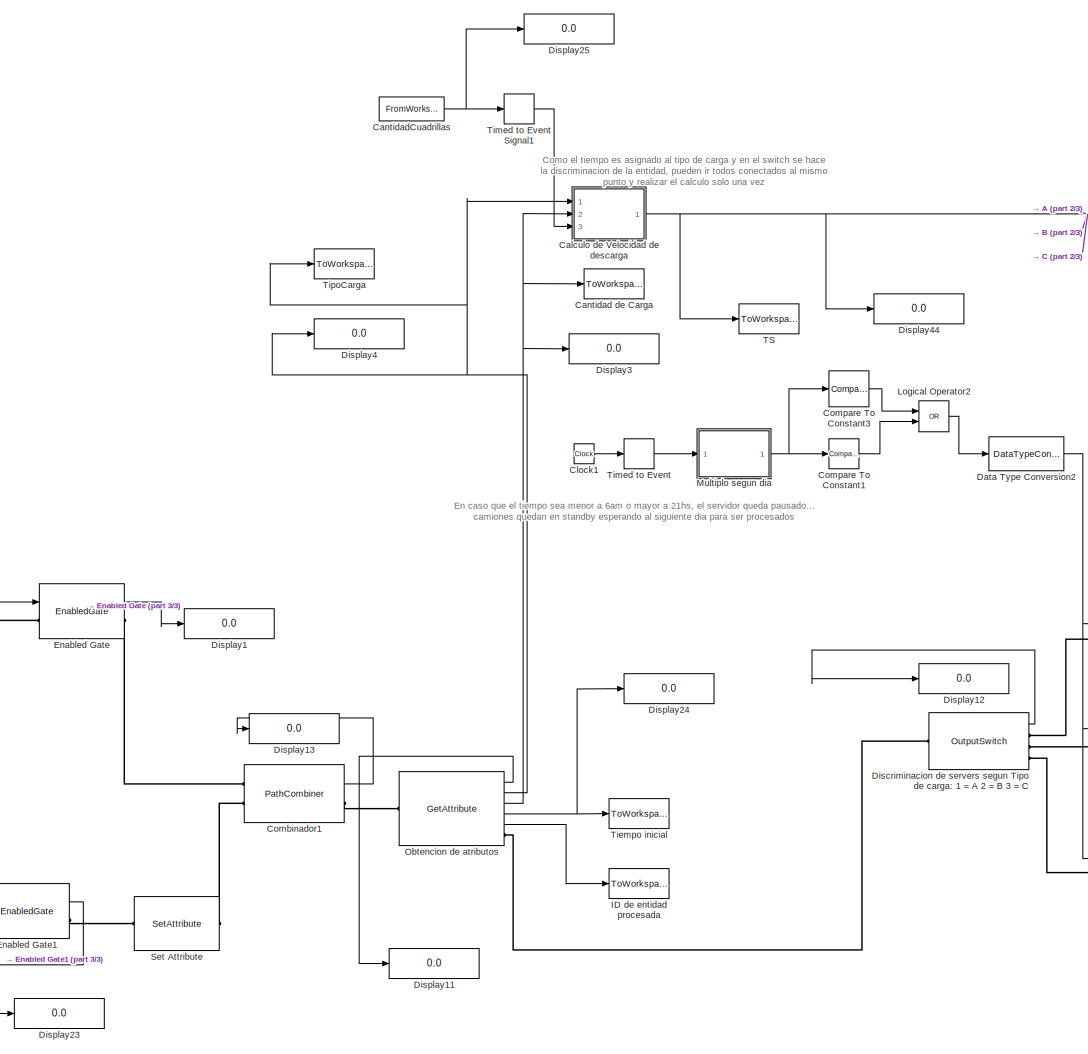
[diagram: root canvas - part 1/3, center side, full height]
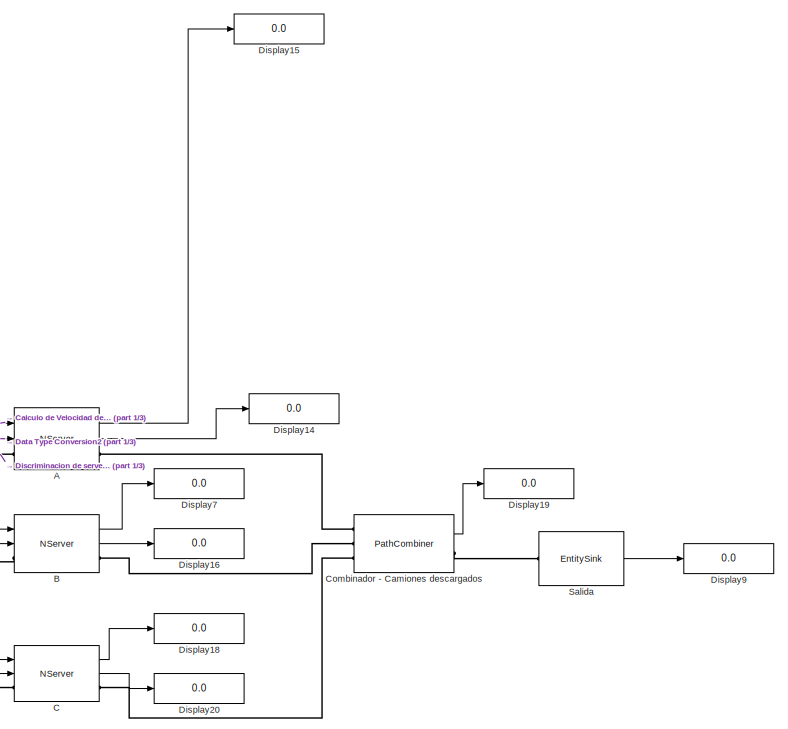
[diagram: root canvas - part 2/3, middle right region]
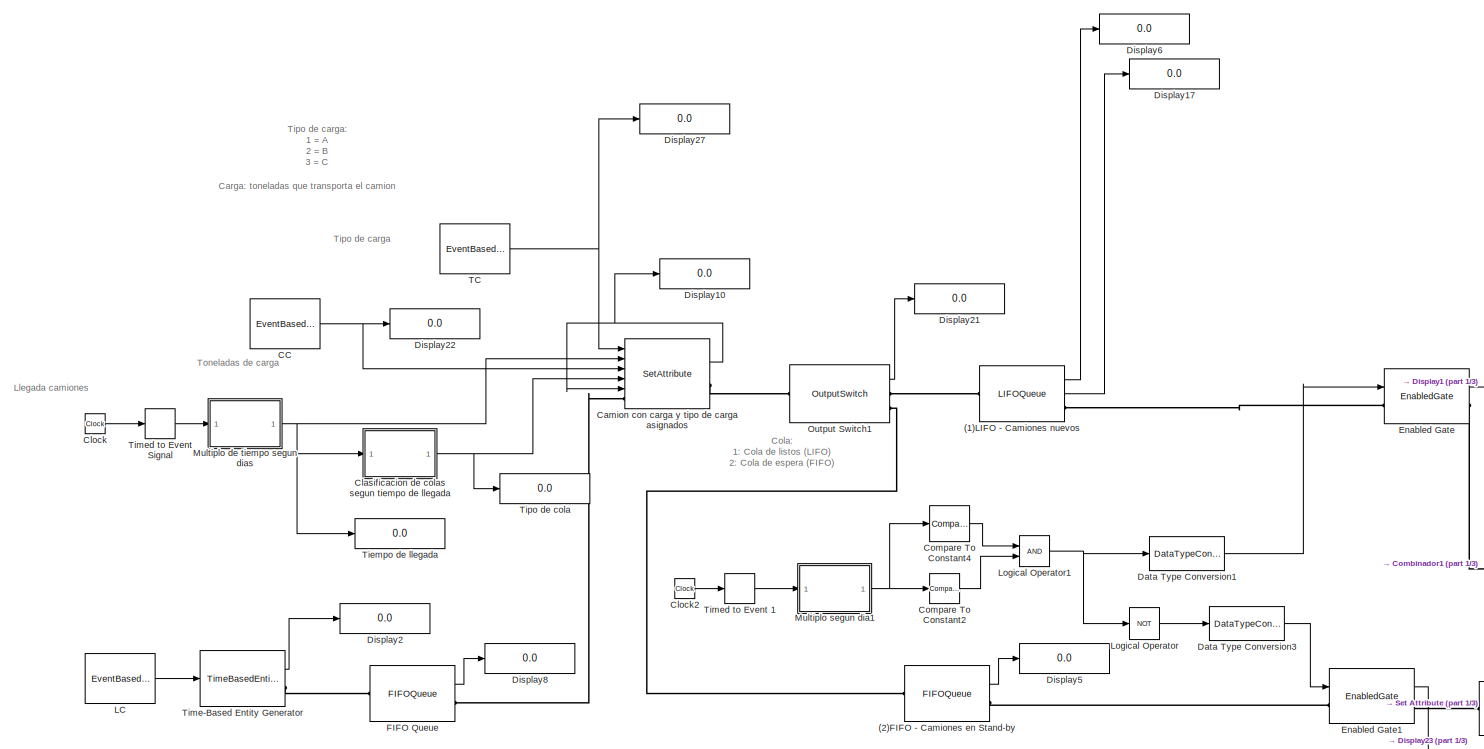
[diagram: root canvas - part 3/3, middle left region]
MODEL slx_c39e3b0edc76
KIND model
BLOCK [LIFOQueue] (1)LIFO - Camiones nuevos
  Capacity = inf
  OutputPortMap = o0,o1
  Ports = [0, 2, 0, 0, 0, 1, 1]
  StatNumberDeparted = on
  StatNumberInBlock = on
BLOCK [FIFOQueue] (2)FIFO - Camiones en Stand-by
  Capacity = inf
  OutputPortMap = o0
  Ports = [0, 1, 0, 0, 0, 1, 1]
  StatNumberDeparted = on
BLOCK [NServer] A
  AllowServiceControl = on
  InputPortMap = u0,u1
  NumberOfServers = 1
  OutputPortMap = o0,o1
  Ports = [2, 2, 0, 0, 0, 1, 1]
  ServiceTimeFrom = Signal port t
  StatNumberDeparted = on
  StatNumberInBlock = on
BLOCK [NServer] B
  AllowServiceControl = on
  InputPortMap = u0,u1
  NumberOfServers = 1
  OutputPortMap = o0,o1
  Ports = [2, 2, 0, 0, 0, 1, 1]
  ServiceTimeFrom = Signal port t
  StatNumberDeparted = on
  StatNumberInBlock = on
BLOCK [NServer] C
  AllowServiceControl = on
  InputPortMap = u0,u1
  NumberOfServers = 1
  OutputPortMap = o0,o1
  Ports = [2, 2, 0, 0, 0, 1, 1]
  ServiceTimeFrom = Signal port t
  StatNumberDeparted = on
  StatNumberInBlock = on
BLOCK [EventBasedRandomNumber] CC
  Distribution = Gaussian (normal)
  OutputPortMap = o0
  Ports = [0, 1]
  Seed = 462317
  meanNorm = 20
  stdNorm = 3.5
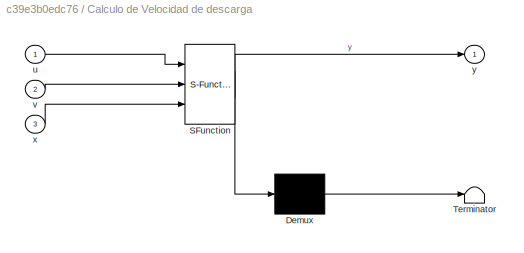
BLOCK [SubSystem] Calculo de Velocidad de descarga
  ErrorFcn = Stateflow.Translate.translate
  PermitHierarchicalResolution = ExplicitOnly
  Ports = [3, 1]
  RequestExecContextInheritance = off
  SFBlockType = MATLAB Function
  TreatAsAtomicUnit = on
BLOCK [Demux] Calculo de Velocidad de descarga/ Demux 
  Outputs = 1
  Ports = [1, 1]
BLOCK [S-Function] Calculo de Velocidad de descarga/ SFunction 
  EnableBusSupport = on
  FunctionName = sf_sfun
  PortCounts = [3 2]
  Ports = [3, 2]
  Tag = Stateflow S-Function v40 1
BLOCK [Terminator] Calculo de Velocidad de descarga/ Terminator 
BLOCK [Inport] Calculo de Velocidad de descarga/u
  IconDisplay = Port number
BLOCK [Inport] Calculo de Velocidad de descarga/v
  IconDisplay = Port number
  Port = 2
BLOCK [Inport] Calculo de Velocidad de descarga/x
  IconDisplay = Port number
  Port = 3
BLOCK [Outport] Calculo de Velocidad de descarga/y
  IconDisplay = Port number
BLOCK [SetAttribute] Camion con carga y tipo de carga asignados
  AttributeFrom = Signal port|Signal port|Dialog|Signal port|Dialog|Signal port|Signal port
  AttributeName = TipoDeCarga|Tiempo|PrecioBase|Carga|Desicion|Cola|ID
  AttributeTreatAsVector = 1|1|1|1|1|1|1
  AttributeValue = 1|clock|94|1|1|1|1
  EvaluatedAttributeValue = { [];[];94;[];1;[];[]}
  InputPortMap = u0,u1,u3,u5,u6
  OutputPortMap = o0
  Ports = [5, 1, 0, 0, 0, 1, 1]
  StatNumberDeparted = on
BLOCK [ToWorkspace] Cantidad de Carga
  FixptAsFi = on
  MaxDataPoints = inf
  Ports = [1]
  SampleTime = -1
  Save2DSignal = 3-D array (concatenate along third dimension)
  SaveFormat = Timeseries
  VariableName = Carga
BLOCK [FromWorkspace] CantidadCuadrillas
  SampleTime = 0
  VariableName = CantCuadrillas
  ZeroCross = on
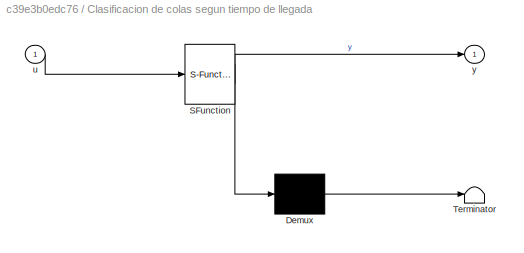
BLOCK [SubSystem] Clasificacion de colas segun tiempo de llegada
  ErrorFcn = Stateflow.Translate.translate
  PermitHierarchicalResolution = ExplicitOnly
  Ports = [1, 1]
  RequestExecContextInheritance = off
  SFBlockType = MATLAB Function
  TreatAsAtomicUnit = on
BLOCK [Demux] Clasificacion de colas segun tiempo de llegada/ Demux 
  Outputs = 1
  Ports = [1, 1]
BLOCK [S-Function] Clasificacion de colas segun tiempo de llegada/ SFunction 
  EnableBusSupport = on
  FunctionName = sf_sfun
  PortCounts = [1 2]
  Ports = [1, 2]
  Tag = Stateflow S-Function v40 4
BLOCK [Terminator] Clasificacion de colas segun tiempo de llegada/ Terminator 
BLOCK [Inport] Clasificacion de colas segun tiempo de llegada/u
  IconDisplay = Port number
BLOCK [Outport] Clasificacion de colas segun tiempo de llegada/y
  IconDisplay = Port number
BLOCK [Clock] Clock
  DisplayTime = on
BLOCK [Clock] Clock1
BLOCK [Clock] Clock2
BLOCK [PathCombiner] Combinador - Camiones descargados
  OutputPortMap = o0
  Ports = [0, 1, 0, 0, 0, 3, 1]
  StatNumberDeparted = on
BLOCK [PathCombiner] Combinador1
  NumberInputPorts = 2
  OutputPortMap = o0
  Ports = [0, 1, 0, 0, 0, 2, 1]
  StatNumberDeparted = on
BLOCK [Reference] Compare To Constant1  REF=simulink/Logic and Bit
Operations/Compare
To Constant
  OutDataTypeStr = uint8
  Ports = [1, 1]
  SourceBlock = simulink/Logic and Bit\nOperations/Compare\nTo Constant
  SourceType = Compare To Constant
  ZeroCross = on
  const = 360
  relop = <
BLOCK [Reference] Compare To Constant2  REF=simulink/Logic and Bit
Operations/Compare
To Constant
  OutDataTypeStr = uint8
  Ports = [1, 1]
  SourceBlock = simulink/Logic and Bit\nOperations/Compare\nTo Constant
  SourceType = Compare To Constant
  ZeroCross = on
  const = 1020
  relop = <
BLOCK [Reference] Compare To Constant3  REF=simulink/Logic and Bit
Operations/Compare
To Constant
  OutDataTypeStr = uint8
  Ports = [1, 1]
  SourceBlock = simulink/Logic and Bit\nOperations/Compare\nTo Constant
  SourceType = Compare To Constant
  ZeroCross = on
  const = 1260
  relop = >
BLOCK [Reference] Compare To Constant4  REF=simulink/Logic and Bit
Operations/Compare
To Constant
  OutDataTypeStr = uint8
  Ports = [1, 1]
  SourceBlock = simulink/Logic and Bit\nOperations/Compare\nTo Constant
  SourceType = Compare To Constant
  ZeroCross = on
  const = 360
  relop = >
BLOCK [DataTypeConversion] Data Type Conversion1
  OutMax = [1]
  OutMin = [-1]
  RndMeth = Floor
  SaturateOnIntegerOverflow = off
BLOCK [DataTypeConversion] Data Type Conversion2
  OutMax = [1]
  OutMin = [-1]
  RndMeth = Floor
  SaturateOnIntegerOverflow = off
BLOCK [DataTypeConversion] Data Type Conversion3
  OutMax = [1]
  OutMin = [-1]
  RndMeth = Floor
  SaturateOnIntegerOverflow = off
BLOCK [OutputSwitch] Discriminacion de servers segun Tipo de carga: 1 = A 2 = B 3 = C 
  OutputPortMap = o0
  Ports = [0, 1, 0, 0, 0, 1, 3]
  StatNumberDeparted = on
BLOCK [Display] Display1
  Decimation = 1
  Ports = [1]
BLOCK [Display] Display10
  Decimation = 1
  Ports = [1]
BLOCK [Display] Display11
  Decimation = 1
  Ports = [1]
BLOCK [Display] Display12
  Decimation = 1
  Ports = [1]
BLOCK [Display] Display13
  Decimation = 1
  Ports = [1]
BLOCK [Display] Display14
  Decimation = 1
  Ports = [1]
BLOCK [Display] Display15
  Decimation = 1
  Ports = [1]
BLOCK [Display] Display16
  Decimation = 1
  Ports = [1]
BLOCK [Display] Display17
  Decimation = 1
  Ports = [1]
BLOCK [Display] Display18
  Decimation = 1
  Ports = [1]
BLOCK [Display] Display19
  Decimation = 2
  Ports = [1]
BLOCK [Display] Display2
  Decimation = 1
  Ports = [1]
BLOCK [Display] Display20
  Decimation = 1
  Ports = [1]
BLOCK [Display] Display21
  Decimation = 1
  Ports = [1]
BLOCK [Display] Display22
  Decimation = 1
  Ports = [1]
BLOCK [Display] Display23
  Decimation = 1
  Ports = [1]
BLOCK [Display] Display24
  Decimation = 1
  Ports = [1]
BLOCK [Display] Display25
  Decimation = 1
  Ports = [1]
BLOCK [Display] Display27
  Decimation = 1
  Ports = [1]
BLOCK [Display] Display3
  Decimation = 1
  Ports = [1]
BLOCK [Display] Display4
  Decimation = 1
  Ports = [1]
BLOCK [Display] Display44
  Decimation = 1
  Ports = [1]
BLOCK [Display] Display5
  Decimation = 1
  Ports = [1]
BLOCK [Display] Display6
  Decimation = 1
  Ports = [1]
BLOCK [Display] Display7
  Decimation = 1
  Ports = [1]
BLOCK [Display] Display8
  Decimation = 1
  Ports = [1]
BLOCK [Display] Display9
  Decimation = 1
  Ports = [1]
BLOCK [EnabledGate] Enabled Gate
  InputPortMap = u0
  OutputPortMap = o0
  Ports = [1, 1, 0, 0, 0, 1, 1]
  StatNumberDeparted = on
BLOCK [EnabledGate] Enabled Gate1
  InputPortMap = u0
  OutputPortMap = o0
  Ports = [1, 1, 0, 0, 0, 1, 1]
  StatNumberDeparted = on
BLOCK [FIFOQueue] FIFO Queue
  Capacity = inf
  OutputPortMap = o1
  Ports = [0, 1, 0, 0, 0, 1, 1]
  StatNumberInBlock = on
BLOCK [ToWorkspace] ID de entidad procesada
  FixptAsFi = on
  MaxDataPoints = inf
  Ports = [1]
  SampleTime = -1
  Save2DSignal = 3-D array (concatenate along third dimension)
  SaveFormat = Timeseries
  VariableName = ID
BLOCK [EventBasedRandomNumber] LC
  OutputPortMap = o0
  Ports = [0, 1]
  Seed = 150794
  meanExp = 2.466
  meanNorm = 20
  stdNorm = 3.5
BLOCK [Logic] Logical Operator
  AllPortsSameDT = off
  Operator = NOT
  OutDataTypeStr = boolean
  Ports = [1, 1]
BLOCK [Logic] Logical Operator1
  AllPortsSameDT = off
  OutDataTypeStr = boolean
  Ports = [2, 1]
BLOCK [Logic] Logical Operator2
  AllPortsSameDT = off
  Operator = OR
  OutDataTypeStr = boolean
  Ports = [2, 1]
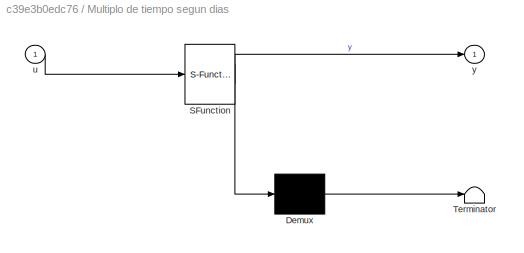
BLOCK [SubSystem] Multiplo de tiempo segun dias
  ErrorFcn = Stateflow.Translate.translate
  PermitHierarchicalResolution = ExplicitOnly
  Ports = [1, 1]
  RequestExecContextInheritance = off
  SFBlockType = MATLAB Function
  TreatAsAtomicUnit = on
BLOCK [Demux] Multiplo de tiempo segun dias/ Demux 
  Outputs = 1
  Ports = [1, 1]
BLOCK [S-Function] Multiplo de tiempo segun dias/ SFunction 
  EnableBusSupport = on
  FunctionName = sf_sfun
  PortCounts = [1 2]
  Ports = [1, 2]
  Tag = Stateflow S-Function v40 2
BLOCK [Terminator] Multiplo de tiempo segun dias/ Terminator 
BLOCK [Inport] Multiplo de tiempo segun dias/u
  IconDisplay = Port number
BLOCK [Outport] Multiplo de tiempo segun dias/y
  IconDisplay = Port number
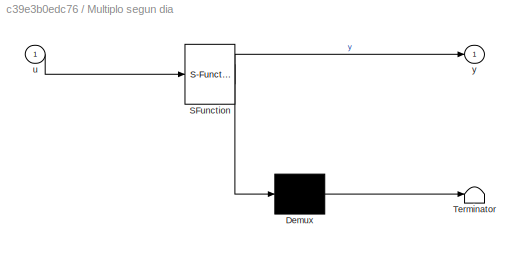
BLOCK [SubSystem] Multiplo segun dia
  ErrorFcn = Stateflow.Translate.translate
  PermitHierarchicalResolution = ExplicitOnly
  Ports = [1, 1]
  RequestExecContextInheritance = off
  SFBlockType = MATLAB Function
  TreatAsAtomicUnit = on
BLOCK [Demux] Multiplo segun dia/ Demux 
  Outputs = 1
  Ports = [1, 1]
BLOCK [S-Function] Multiplo segun dia/ SFunction 
  EnableBusSupport = on
  FunctionName = sf_sfun
  PortCounts = [1 2]
  Ports = [1, 2]
  Tag = Stateflow S-Function v40 5
BLOCK [Terminator] Multiplo segun dia/ Terminator 
BLOCK [Inport] Multiplo segun dia/u
  IconDisplay = Port number
BLOCK [Outport] Multiplo segun dia/y
  IconDisplay = Port number
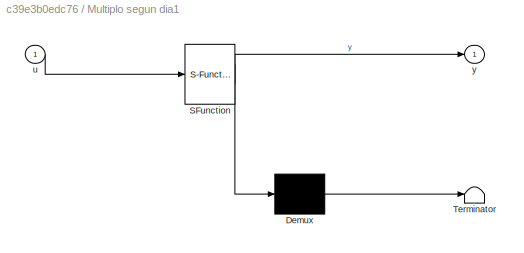
BLOCK [SubSystem] Multiplo segun dia1
  ErrorFcn = Stateflow.Translate.translate
  PermitHierarchicalResolution = ExplicitOnly
  Ports = [1, 1]
  RequestExecContextInheritance = off
  SFBlockType = MATLAB Function
  TreatAsAtomicUnit = on
BLOCK [Demux] Multiplo segun dia1/ Demux 
  Outputs = 1
  Ports = [1, 1]
BLOCK [S-Function] Multiplo segun dia1/ SFunction 
  EnableBusSupport = on
  FunctionName = sf_sfun
  PortCounts = [1 2]
  Ports = [1, 2]
  Tag = Stateflow S-Function v40 3
BLOCK [Terminator] Multiplo segun dia1/ Terminator 
BLOCK [Inport] Multiplo segun dia1/u
  IconDisplay = Port number
BLOCK [Outport] Multiplo segun dia1/y
  IconDisplay = Port number
BLOCK [GetAttribute] Obtencion de atributos
  AttributeDefaultValue = 1|1|1|1
  AttributeMissing = Error|Error|Error|Error
  AttributeName = TipoDeCarga|Carga|Tiempo|ID
  AttributeSendTiming = After entity departure|After entity departure|After entity departure|After entity departure
  AttributeTreatAsVector = 1|1|1|1
  EvaluatedDefaultAttributeValue = { [];[];[];[]}
  OutputPortMap = o0,o1,o2,o3,o4
  Ports = [0, 5, 0, 0, 0, 1, 1]
  StatNumberDeparted = on
BLOCK [OutputSwitch] Output Switch1
  AttributeName = Cola
  NumberOutputPorts = 2
  OutputPortMap = o0
  Ports = [0, 1, 0, 0, 0, 1, 2]
  StatNumberDeparted = on
  SwitchingCriterion = From attribute
BLOCK [EntitySink] Salida 
  OutputPortMap = o0
  Ports = [0, 1, 0, 0, 0, 1]
  StatNumberArrived = on
BLOCK [SetAttribute] Set Attribute
  AttributeName = Tiempo
  AttributeValue = 360
  EvaluatedAttributeValue = { 360}
  Ports = [0, 0, 0, 0, 0, 1, 1]
BLOCK [EventBasedRandomNumber] TC
  Distribution = Arbitrary discrete
  OutputPortMap = o0
  Ports = [0, 1]
  Seed = 425890
  probVecDisc = [0.4 0.35 0.25]
  valueVecDisc = [1 2 3]
BLOCK [ToWorkspace] TS
  FixptAsFi = on
  MaxDataPoints = inf
  Ports = [1]
  SampleTime = -1
  Save2DSignal = 3-D array (concatenate along third dimension)
  SaveFormat = Timeseries
  VariableName = TS
BLOCK [Display] Tiempo de llegada
  Decimation = 1
  Ports = [1]
BLOCK [ToWorkspace] Tiempo inicial
  FixptAsFi = on
  MaxDataPoints = inf
  Ports = [1]
  SampleTime = -1
  Save2DSignal = 3-D array (concatenate along third dimension)
  SaveFormat = Timeseries
  VariableName = TI
BLOCK [TimeBasedEntityGenerator] Time-Based Entity Generator
  Distribution = Exponential
  GenerateEntitiesUpon = Intergeneration time from port t
  InitialSeed = 567498
  InputPortMap = u0
  Mean = 2.46
  OutputPortMap = o0
  Ports = [1, 1, 0, 0, 0, 0, 1]
  StatNumberDeparted = on
BLOCK [TimedToEventSignal] Timed to Event 
  InputPortMap = u0
  OutputPortMap = o0
  Ports = [1, 1]
BLOCK [TimedToEventSignal] Timed to Event 1
  InputPortMap = u0
  OutputPortMap = o0
  Ports = [1, 1]
BLOCK [TimedToEventSignal] Timed to Event Signal
  InputPortMap = u0
  OutputPortMap = o0
  Ports = [1, 1]
BLOCK [TimedToEventSignal] Timed to Event Signal1
  InputPortMap = u0
  OutputPortMap = o0
  Ports = [1, 1]
BLOCK [Display] Tipo de cola
  Decimation = 1
  Ports = [1]
BLOCK [ToWorkspace] TipoCarga
  FixptAsFi = on
  MaxDataPoints = inf
  Ports = [1]
  SampleTime = -1
  Save2DSignal = 3-D array (concatenate along third dimension)
  SaveFormat = Timeseries
  VariableName = TipoCarga
ANNOTATION (root): Carga: toneladas que transporta el camion
ANNOTATION (root): Cola: 1: Cola de listos (LIFO) 2: Cola de espera (FIFO)
ANNOTATION (root): Como el tiempo es asignado al tipo de carga y en el switch se hace la discriminacion de la entidad, pueden ir todos conectados al mismo punto y realizar el calculo solo una vez
ANNOTATION (root): En caso que el tiempo sea menor a 6am o mayor a 21hs, el servidor queda pausado y los camiones quedan en standby esperando al siguiente dia para ser procesados
ANNOTATION (root): Llegada camiones
ANNOTATION (root): Tipo de carga
ANNOTATION (root): Tipo de carga: 1 = A 2 = B 3 = C
ANNOTATION (root): Toneladas de carga
LINE (1)LIFO - Camiones nuevos:1 -> Display6:1
LINE (1)LIFO - Camiones nuevos:2 -> Display17:1
LINE (2)FIFO - Camiones en Stand-by:1 -> Display5:1
LINE A:1 -> Display15:1
LINE A:2 -> Display14:1
LINE B:1 -> Display7:1
LINE B:2 -> Display16:1
LINE C:1 -> Display18:1
LINE C:2 -> Display20:1
NET CC:1 -> Camion con carga y tipo de carga asignados:3, Display22:1
NET Calculo de Velocidad de descarga:1 -> A:1, B:1, C:1, Display44:1, TS:1
NET Camion con carga y tipo de carga asignados:1 -> Camion con carga y tipo de carga asignados:5, Display10:1
NET CantidadCuadrillas:1 -> Display25:1, Timed to Event Signal1:1
NET Clasificacion de colas segun tiempo de llegada:1 -> Camion con carga y tipo de carga asignados:4, Tipo de cola:1
LINE Clock1:1 -> Timed to Event :1
LINE Clock2:1 -> Timed to Event 1:1
LINE Clock:1 -> Timed to Event Signal:1
LINE Combinador - Camiones descargados:1 -> Display19:1
LINE Combinador1:1 -> Display13:1
LINE Compare To Constant1:1 -> Logical Operator2:2
LINE Compare To Constant2:1 -> Logical Operator1:2
LINE Compare To Constant3:1 -> Logical Operator2:1
LINE Compare To Constant4:1 -> Logical Operator1:1
LINE Data Type Conversion1:1 -> Enabled Gate:1
NET Data Type Conversion2:1 -> A:2, B:2, C:2
LINE Data Type Conversion3:1 -> Enabled Gate1:1
LINE Discriminacion de servers segun Tipo de carga: 1 = A 2 = B 3 = C :1 -> Display12:1
LINE Enabled Gate1:1 -> Display23:1
LINE Enabled Gate:1 -> Display1:1
LINE FIFO Queue:1 -> Display8:1
LINE LC:1 -> Time-Based Entity Generator:1
NET Logical Operator1:1 -> Data Type Conversion1:1, Logical Operator:1
LINE Logical Operator2:1 -> Data Type Conversion2:1
LINE Logical Operator:1 -> Data Type Conversion3:1
NET Multiplo de tiempo segun dias:1 -> Camion con carga y tipo de carga asignados:2, Clasificacion de colas segun tiempo de llegada:1, Tiempo de llegada:1
NET Multiplo segun dia1:1 -> Compare To Constant2:1, Compare To Constant4:1
NET Multiplo segun dia:1 -> Compare To Constant1:1, Compare To Constant3:1
LINE Obtencion de atributos:1 -> Display11:1
NET Obtencion de atributos:2 -> Calculo de Velocidad de descarga:1, Display4:1, TipoCarga:1
NET Obtencion de atributos:3 -> Calculo de Velocidad de descarga:2, Cantidad de Carga:1, Display3:1
NET Obtencion de atributos:4 -> Display24:1, Tiempo inicial:1
LINE Obtencion de atributos:5 -> ID de entidad procesada:1
LINE Output Switch1:1 -> Display21:1
LINE Salida :1 -> Display9:1
NET TC:1 -> Camion con carga y tipo de carga asignados:1, Display27:1
LINE Time-Based Entity Generator:1 -> Display2:1
LINE Timed to Event 1:1 -> Multiplo segun dia1:1
LINE Timed to Event :1 -> Multiplo segun dia:1
LINE Timed to Event Signal1:1 -> Calculo de Velocidad de descarga:3
LINE Timed to Event Signal:1 -> Multiplo de tiempo segun dias:1
PLINE (1)LIFO - Camiones nuevos:LConn1 -- Output Switch1:RConn1
PLINE (1)LIFO - Camiones nuevos:RConn1 -- Enabled Gate:LConn1
PLINE (2)FIFO - Camiones en Stand-by:LConn1 -- Output Switch1:RConn2
PLINE (2)FIFO - Camiones en Stand-by:RConn1 -- Enabled Gate1:LConn1
PLINE A:LConn1 -- Discriminacion de servers segun Tipo de carga: 1 = A 2 = B 3 = C :RConn1
PLINE A:RConn1 -- Combinador - Camiones descargados:LConn1
PLINE B:LConn1 -- Discriminacion de servers segun Tipo de carga: 1 = A 2 = B 3 = C :RConn2
PLINE B:RConn1 -- Combinador - Camiones descargados:LConn2
PLINE C:LConn1 -- Discriminacion de servers segun Tipo de carga: 1 = A 2 = B 3 = C :RConn3
PLINE C:RConn1 -- Combinador - Camiones descargados:LConn3
PLINE Camion con carga y tipo de carga asignados:LConn1 -- FIFO Queue:RConn1
PLINE Camion con carga y tipo de carga asignados:RConn1 -- Output Switch1:LConn1
PLINE Combinador - Camiones descargados:RConn1 -- Salida :LConn1
PLINE Combinador1:LConn1 -- Enabled Gate:RConn1
PLINE Combinador1:LConn2 -- Set Attribute:RConn1
PLINE Combinador1:RConn1 -- Obtencion de atributos:LConn1
PLINE Discriminacion de servers segun Tipo de carga: 1 = A 2 = B 3 = C :LConn1 -- Obtencion de atributos:RConn1
PLINE Enabled Gate1:RConn1 -- Set Attribute:LConn1
PLINE FIFO Queue:LConn1 -- Time-Based Entity Generator:RConn1
note: NET lines group one-source signal fan-out (src -> all destinations, sorted); 1:1 wires keep LINE
